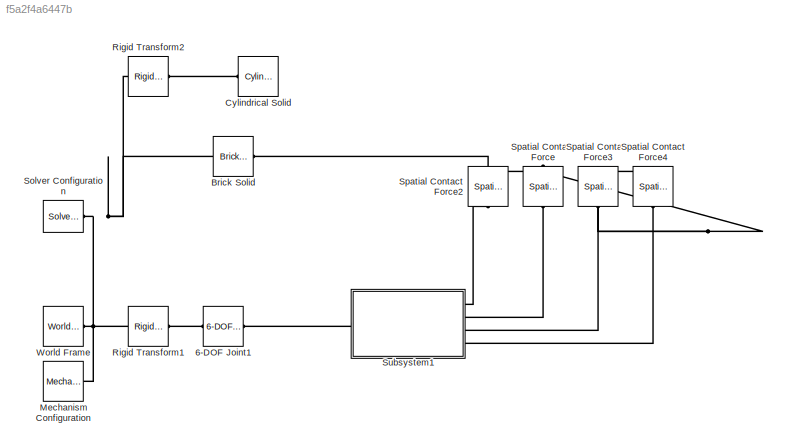
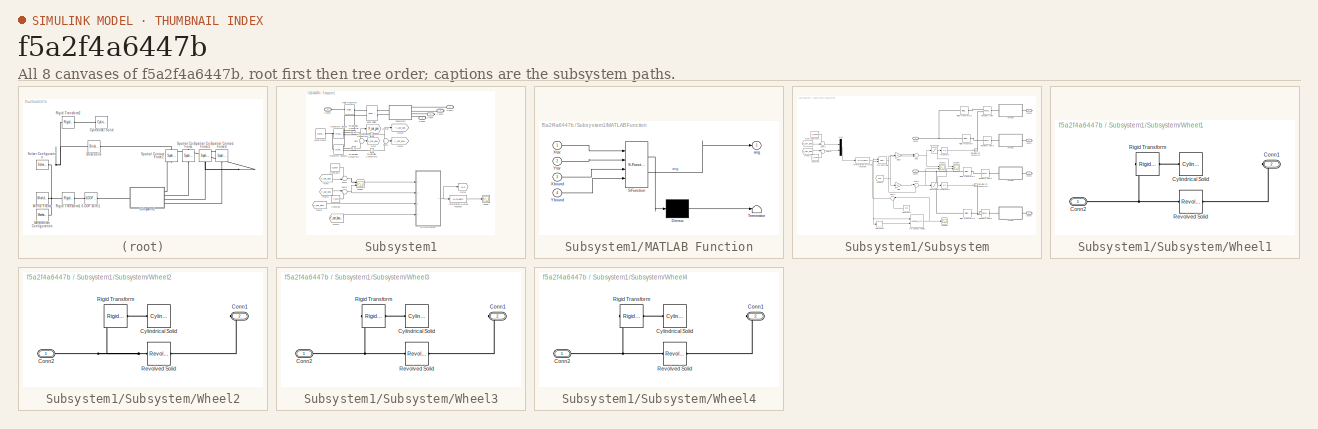
[diagram: thumbnail index - all 8 canvases of the model, root first then tree order]
MODEL slx_f5a2f4a6447b
KIND model
CONFIG AbsTol = 1e-3
CONFIG EnableMultiTasking = off
CONFIG FixedStep = 1e-3
CONFIG MaxStep = 1e-3
CONFIG MinStep = auto
CONFIG RelTol = 1e-3
CONFIG SampleTimeConstraint = Unconstrained
CONFIG SolverName = ode5
CONFIG StartTime = 0.0
CONFIG StopTime = 75
BLOCK [Reference] 6-DOF Joint1  REF=sm_lib/Joints/6-DOF Joint
  Ports = [0, 0, 0, 0, 0, 1, 1]
  SourceBlock = sm_lib/Joints/6-DOF Joint
  SourceProductBaseCode = MS
  SourceType = 6-DOF Joint
BLOCK [Reference] Brick Solid  REF=sm_lib/Body Elements/Brick Solid
  NameLocation = right
  Ports = [0, 0, 0, 0, 0, 1, 1]
  SourceBlock = sm_lib/Body Elements/Brick Solid
  SourceProductBaseCode = MS
  SourceType = Brick Solid
BLOCK [Reference] Cylindrical Solid  REF=sm_lib/Body Elements/Cylindrical Solid
  Ports = [0, 0, 0, 0, 0, 1]
  SourceBlock = sm_lib/Body Elements/Cylindrical Solid
  SourceProductBaseCode = MS
  SourceType = Cylindrical Solid
BLOCK [Reference] Mechanism Configuration  REF=sm_lib/Utilities/Mechanism
Configuration
  Ports = [0, 0, 0, 0, 0, 0, 1]
  SourceBlock = sm_lib/Utilities/Mechanism\nConfiguration
  SourceProductBaseCode = MS
  SourceType = Mechanism\nConfiguration
BLOCK [Reference] Rigid Transform1  REF=sm_lib/Frames and
Transforms/Rigid
Transform
  Ports = [0, 0, 0, 0, 0, 1, 1]
  SourceBlock = sm_lib/Frames and\nTransforms/Rigid\nTransform
  SourceProductBaseCode = MS
  SourceType = Rigid\nTransform
BLOCK [Reference] Rigid Transform2  REF=sm_lib/Frames and
Transforms/Rigid
Transform
  Ports = [0, 0, 0, 0, 0, 1, 1]
  SourceBlock = sm_lib/Frames and\nTransforms/Rigid\nTransform
  SourceProductBaseCode = MS
  SourceType = Rigid\nTransform
BLOCK [Reference] Solver Configuration  REF=nesl_utility/Solver
Configuration
  Ports = [0, 0, 0, 0, 0, 0, 1]
  SourceBlock = nesl_utility/Solver\nConfiguration
  SourceProductBaseCode = PW,SS
  SourceType = Solver\nConfiguration
BLOCK [Reference] Spatial Contact Force  REF=sm_lib/Forces and
Torques/Spatial
Contact Force
  NameLocation = left
  Ports = [0, 0, 0, 0, 0, 1, 1]
  SourceBlock = sm_lib/Forces and\nTorques/Spatial\nContact Force
  SourceProductBaseCode = MS
  SourceType = Spatial\nContact Force
BLOCK [Reference] Spatial Contact Force2  REF=sm_lib/Forces and
Torques/Spatial
Contact Force
  NameLocation = left
  Ports = [0, 0, 0, 0, 0, 1, 1]
  SourceBlock = sm_lib/Forces and\nTorques/Spatial\nContact Force
  SourceProductBaseCode = MS
  SourceType = Spatial\nContact Force
BLOCK [Reference] Spatial Contact Force3  REF=sm_lib/Forces and
Torques/Spatial
Contact Force
  NameLocation = left
  Ports = [0, 0, 0, 0, 0, 1, 1]
  SourceBlock = sm_lib/Forces and\nTorques/Spatial\nContact Force
  SourceProductBaseCode = MS
  SourceType = Spatial\nContact Force
BLOCK [Reference] Spatial Contact Force4  REF=sm_lib/Forces and
Torques/Spatial
Contact Force
  NameLocation = left
  Ports = [0, 0, 0, 0, 0, 1, 1]
  SourceBlock = sm_lib/Forces and\nTorques/Spatial\nContact Force
  SourceProductBaseCode = MS
  SourceType = Spatial\nContact Force
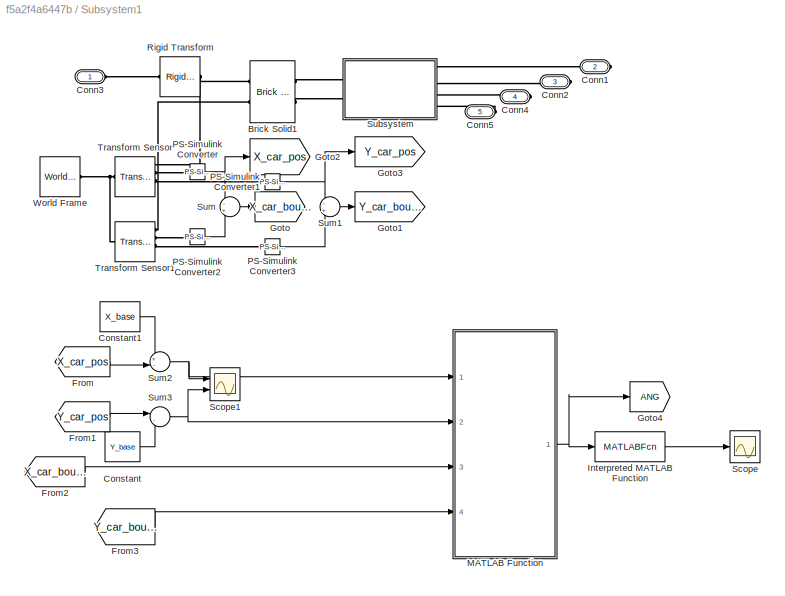
BLOCK [SubSystem] Subsystem1
  Ports = [0, 0, 0, 0, 0, 1, 4]
  RequestExecContextInheritance = off
BLOCK [Reference] Subsystem1/Brick Solid1  REF=sm_lib/Body Elements/Brick Solid
  NameLocation = top
  Ports = [0, 0, 0, 0, 0, 2, 2]
  SourceBlock = sm_lib/Body Elements/Brick Solid
  SourceProductBaseCode = MS
  SourceType = Brick Solid
BLOCK [PMIOPort] Subsystem1/Conn1
  Port = 2
  Side = Right
BLOCK [PMIOPort] Subsystem1/Conn2
  Port = 3
  Side = Right
BLOCK [PMIOPort] Subsystem1/Conn3
  Side = Left
BLOCK [PMIOPort] Subsystem1/Conn4
  Port = 4
  Side = Right
BLOCK [PMIOPort] Subsystem1/Conn5
  Port = 5
  Side = Right
BLOCK [Constant] Subsystem1/Constant
  Value = Y_base
BLOCK [Constant] Subsystem1/Constant1
  Value = X_base
BLOCK [From] Subsystem1/From
  GotoTag = X_car_pos
  TagVisibility = global
BLOCK [From] Subsystem1/From1
  GotoTag = Y_car_pos
  TagVisibility = global
BLOCK [From] Subsystem1/From2
  GotoTag = X_car_bound
  TagVisibility = global
BLOCK [From] Subsystem1/From3
  GotoTag = Y_car_bound
  TagVisibility = global
BLOCK [Goto] Subsystem1/Goto
  GotoTag = X_car_bound
  TagVisibility = global
BLOCK [Goto] Subsystem1/Goto1
  GotoTag = Y_car_bound
  TagVisibility = global
BLOCK [Goto] Subsystem1/Goto2
  GotoTag = X_car_pos
  TagVisibility = global
BLOCK [Goto] Subsystem1/Goto3
  GotoTag = Y_car_pos
  TagVisibility = global
BLOCK [Goto] Subsystem1/Goto4
  GotoTag = ANG
  TagVisibility = global
BLOCK [MATLABFcn] Subsystem1/Interpreted MATLAB Function
  MATLABFcn = rad2deg
  Ports = [1, 1]
BLOCK [SubSystem] Subsystem1/MATLAB Function
  ErrorFcn = Stateflow.Translate.translate
  PermitHierarchicalResolution = ExplicitOnly
  Ports = [4, 1]
  RequestExecContextInheritance = off
  SFBlockType = MATLAB Function
  TreatAsAtomicUnit = on
BLOCK [Demux] Subsystem1/MATLAB Function/ Demux 
  Outputs = 1
  Ports = [1, 1]
BLOCK [S-Function] Subsystem1/MATLAB Function/ SFunction 
  EnableBusSupport = on
  FunctionName = sf_sfun
  PortCounts = [4 2]
  Ports = [4, 2]
  SFcnIsStateOwnerBlock = off
  SFunctionDeploymentMode = off
  Tag = Stateflow S-Function 2
BLOCK [Terminator] Subsystem1/MATLAB Function/ Terminator 
BLOCK [Inport] Subsystem1/MATLAB Function/Xbound
  Port = 3
BLOCK [Inport] Subsystem1/MATLAB Function/Xtar
BLOCK [Inport] Subsystem1/MATLAB Function/Ybound
  Port = 4
BLOCK [Inport] Subsystem1/MATLAB Function/Ytar
  Port = 2
BLOCK [Outport] Subsystem1/MATLAB Function/ang
BLOCK [Reference] Subsystem1/PS-Simulink Converter  REF=nesl_utility/PS-Simulink
Converter
  Ports = [0, 1, 0, 0, 0, 1]
  SourceBlock = nesl_utility/PS-Simulink\nConverter
  SourceProductBaseCode = PW,SS
  SourceType = PS-Simulink\nConverter
BLOCK [Reference] Subsystem1/PS-Simulink Converter1  REF=nesl_utility/PS-Simulink
Converter
  Ports = [0, 1, 0, 0, 0, 1]
  SourceBlock = nesl_utility/PS-Simulink\nConverter
  SourceProductBaseCode = PW,SS
  SourceType = PS-Simulink\nConverter
BLOCK [Reference] Subsystem1/PS-Simulink Converter2  REF=nesl_utility/PS-Simulink
Converter
  Ports = [0, 1, 0, 0, 0, 1]
  SourceBlock = nesl_utility/PS-Simulink\nConverter
  SourceProductBaseCode = PW,SS
  SourceType = PS-Simulink\nConverter
BLOCK [Reference] Subsystem1/PS-Simulink Converter3  REF=nesl_utility/PS-Simulink
Converter
  Ports = [0, 1, 0, 0, 0, 1]
  SourceBlock = nesl_utility/PS-Simulink\nConverter
  SourceProductBaseCode = PW,SS
  SourceType = PS-Simulink\nConverter
BLOCK [Reference] Subsystem1/Rigid Transform  REF=sm_lib/Frames and
Transforms/Rigid
Transform
  Ports = [0, 0, 0, 0, 0, 1, 1]
  SourceBlock = sm_lib/Frames and\nTransforms/Rigid\nTransform
  SourceProductBaseCode = MS
  SourceType = Rigid\nTransform
BLOCK [Scope] Subsystem1/Scope
  Floating = off
  NumInputPorts = 1
  Ports = [1]
  ScopeSpecificationString = Simulink.scopes.TimeScopeBlockCfg('CurrentConfiguration', extmgr.ConfigurationSet(extmgr.Configuration('Core','General UI',true),extmgr.Configuration('Core','Source UI',true),extmgr.Configuration('Sources','WiredSimulink',true),extmgr.Configuration('Visuals','Time Domain',true,'SerializedDisplays',{struct('MinYLimReal','-224.72252','MaxYLimReal','223.83335','YLabelReal','','MinYLimMag',' 0.00000',...<+1434ch>
BLOCK [Scope] Subsystem1/Scope1
  Floating = off
  NumInputPorts = 2
  Ports = [2]
  ScopeSpecificationString = Simulink.scopes.TimeScopeBlockCfg('CurrentConfiguration', extmgr.ConfigurationSet(extmgr.Configuration('Core','General UI',true),extmgr.Configuration('Core','Source UI',true),extmgr.Configuration('Sources','WiredSimulink',true,'DataLoggingVariableName','ScopeData1'),extmgr.Configuration('Visuals','Time Domain',true,'SerializedDisplays',{struct('MinYLimReal','-10.04181','MaxYLimReal','170.3756','YL...<+1445ch>
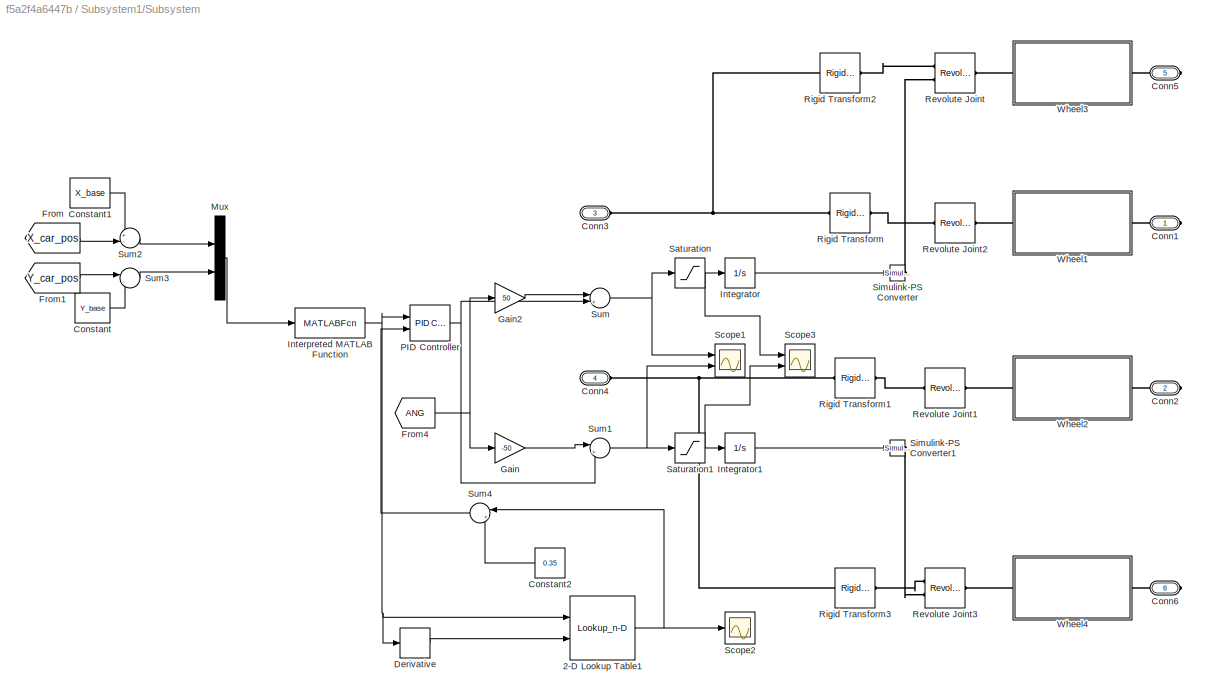
BLOCK [SubSystem] Subsystem1/Subsystem
  Ports = [0, 0, 0, 0, 0, 2, 4]
  RequestExecContextInheritance = off
BLOCK [Lookup_n-D] Subsystem1/Subsystem/2-D Lookup Table1
  BreakpointsForDimension1 = X(1,:)
  BreakpointsForDimension2 = Y(:,1)
  InputPortMap = u0,u1
  InternalRulePriority = Speed
  Ports = [2, 1]
  RndMeth = Simplest
  Table = Z(:,:,1)
BLOCK [PMIOPort] Subsystem1/Subsystem/Conn1
  Side = Right
BLOCK [PMIOPort] Subsystem1/Subsystem/Conn2
  Port = 2
  Side = Right
BLOCK [PMIOPort] Subsystem1/Subsystem/Conn3
  Port = 3
  Side = Left
BLOCK [PMIOPort] Subsystem1/Subsystem/Conn4
  Port = 4
  Side = Left
BLOCK [PMIOPort] Subsystem1/Subsystem/Conn5
  Port = 5
  Side = Right
BLOCK [PMIOPort] Subsystem1/Subsystem/Conn6
  Port = 6
  Side = Right
BLOCK [Constant] Subsystem1/Subsystem/Constant
  Value = Y_base
BLOCK [Constant] Subsystem1/Subsystem/Constant1
  Value = X_base
BLOCK [Constant] Subsystem1/Subsystem/Constant2
  NameLocation = top
  Value = 0.35
BLOCK [Derivative] Subsystem1/Subsystem/Derivative
BLOCK [From] Subsystem1/Subsystem/From
  GotoTag = X_car_pos
  TagVisibility = global
BLOCK [From] Subsystem1/Subsystem/From1
  GotoTag = Y_car_pos
  TagVisibility = global
BLOCK [From] Subsystem1/Subsystem/From4
  GotoTag = ANG
  TagVisibility = global
BLOCK [Gain] Subsystem1/Subsystem/Gain
  Gain = -50
BLOCK [Gain] Subsystem1/Subsystem/Gain2
  Gain = 50
BLOCK [Integrator] Subsystem1/Subsystem/Integrator
  LowerSaturationLimit = 0
  Ports = [1, 1]
  UpperSaturationLimit = 50
BLOCK [Integrator] Subsystem1/Subsystem/Integrator1
  LowerSaturationLimit = 0
  Ports = [1, 1]
  UpperSaturationLimit = 50
BLOCK [MATLABFcn] Subsystem1/Subsystem/Interpreted MATLAB Function
  MATLABFcn = norm
  Ports = [1, 1]
BLOCK [Mux] Subsystem1/Subsystem/Mux
  DisplayOption = bar
  Inputs = 2
  Ports = [2, 1]
BLOCK [Reference] Subsystem1/Subsystem/PID Controller  REF=pid_lib/PID Controller
  Ports = [2, 1]
  SourceBlock = pid_lib/PID Controller
  SourceProductBaseCode = SL
  SourceType = PID 1dof
BLOCK [Reference] Subsystem1/Subsystem/Revolute Joint  REF=sm_lib/Joints/Revolute Joint
  Ports = [0, 0, 0, 0, 0, 2, 1]
  SourceBlock = sm_lib/Joints/Revolute Joint
  SourceProductBaseCode = MS
  SourceType = Revolute Joint
BLOCK [Reference] Subsystem1/Subsystem/Revolute Joint1  REF=sm_lib/Joints/Revolute Joint
  Ports = [0, 0, 0, 0, 0, 1, 1]
  SourceBlock = sm_lib/Joints/Revolute Joint
  SourceProductBaseCode = MS
  SourceType = Revolute Joint
BLOCK [Reference] Subsystem1/Subsystem/Revolute Joint2  REF=sm_lib/Joints/Revolute Joint
  Ports = [0, 0, 0, 0, 0, 1, 1]
  SourceBlock = sm_lib/Joints/Revolute Joint
  SourceProductBaseCode = MS
  SourceType = Revolute Joint
BLOCK [Reference] Subsystem1/Subsystem/Revolute Joint3  REF=sm_lib/Joints/Revolute Joint
  Ports = [0, 0, 0, 0, 0, 2, 1]
  SourceBlock = sm_lib/Joints/Revolute Joint
  SourceProductBaseCode = MS
  SourceType = Revolute Joint
BLOCK [Reference] Subsystem1/Subsystem/Rigid Transform  REF=sm_lib/Frames and
Transforms/Rigid
Transform
  Ports = [0, 0, 0, 0, 0, 1, 1]
  SourceBlock = sm_lib/Frames and\nTransforms/Rigid\nTransform
  SourceProductBaseCode = MS
  SourceType = Rigid\nTransform
BLOCK [Reference] Subsystem1/Subsystem/Rigid Transform1  REF=sm_lib/Frames and
Transforms/Rigid
Transform
  Ports = [0, 0, 0, 0, 0, 1, 1]
  SourceBlock = sm_lib/Frames and\nTransforms/Rigid\nTransform
  SourceProductBaseCode = MS
  SourceType = Rigid\nTransform
BLOCK [Reference] Subsystem1/Subsystem/Rigid Transform2  REF=sm_lib/Frames and
Transforms/Rigid
Transform
  Ports = [0, 0, 0, 0, 0, 1, 1]
  SourceBlock = sm_lib/Frames and\nTransforms/Rigid\nTransform
  SourceProductBaseCode = MS
  SourceType = Rigid\nTransform
BLOCK [Reference] Subsystem1/Subsystem/Rigid Transform3  REF=sm_lib/Frames and
Transforms/Rigid
Transform
  Ports = [0, 0, 0, 0, 0, 1, 1]
  SourceBlock = sm_lib/Frames and\nTransforms/Rigid\nTransform
  SourceProductBaseCode = MS
  SourceType = Rigid\nTransform
BLOCK [Saturate] Subsystem1/Subsystem/Saturation
  LowerLimit = 0
  UpperLimit = 50
BLOCK [Saturate] Subsystem1/Subsystem/Saturation1
  LowerLimit = 0
  UpperLimit = 50
BLOCK [Scope] Subsystem1/Subsystem/Scope1
  Floating = off
  NumInputPorts = 2
  Ports = [2]
  ScopeSpecificationString = Simulink.scopes.TimeScopeBlockCfg('CurrentConfiguration', extmgr.ConfigurationSet(extmgr.Configuration('Core','General UI',true,'FigureColor',[1 1 1]),extmgr.Configuration('Core','Source UI',true),extmgr.Configuration('Sources','WiredSimulink',true,'DataLoggingVariableName','ScopeData3'),extmgr.Configuration('Visuals','Time Domain',true,'SerializedDisplays',{struct('MinYLimReal','-196.33763','MaxY...<+1679ch>
BLOCK [Scope] Subsystem1/Subsystem/Scope2
  Floating = off
  NumInputPorts = 1
  Ports = [1]
  ScopeSpecificationString = Simulink.scopes.TimeScopeBlockCfg('CurrentConfiguration', extmgr.ConfigurationSet(extmgr.Configuration('Core','General UI',true,'FigureColor',[1 1 1]),extmgr.Configuration('Core','Source UI',true),extmgr.Configuration('Sources','WiredSimulink',true,'DataLoggingVariableName','ScopeData4','DataLoggingSaveFormat','Array','DataLoggingLimitDataPoints',true,'DataLoggingDecimation','1'),extmgr.Configurat...<+1783ch>
BLOCK [Scope] Subsystem1/Subsystem/Scope3
  Floating = off
  NumInputPorts = 2
  Ports = [2]
  ScopeSpecificationString = Simulink.scopes.TimeScopeBlockCfg('CurrentConfiguration', extmgr.ConfigurationSet(extmgr.Configuration('Core','General UI',true,'FigureColor',[1 1 1]),extmgr.Configuration('Core','Source UI',true),extmgr.Configuration('Sources','WiredSimulink',true,'DataLoggingVariableName','ScopeData1'),extmgr.Configuration('Visuals','Time Domain',true,'SerializedDisplays',{struct('MinYLimReal','-6.25','MaxYLimRe...<+1690ch>
BLOCK [Reference] Subsystem1/Subsystem/Simulink-PS Converter  REF=nesl_utility/Simulink-PS
Converter
  Ports = [1, 0, 0, 0, 0, 0, 1]
  SourceBlock = nesl_utility/Simulink-PS\nConverter
  SourceProductBaseCode = PW,SS
  SourceType = Simulink-PS\nConverter
BLOCK [Reference] Subsystem1/Subsystem/Simulink-PS Converter1  REF=nesl_utility/Simulink-PS
Converter
  Ports = [1, 0, 0, 0, 0, 0, 1]
  SourceBlock = nesl_utility/Simulink-PS\nConverter
  SourceProductBaseCode = PW,SS
  SourceType = Simulink-PS\nConverter
BLOCK [Sum] Subsystem1/Subsystem/Sum
  Inputs = |++
  Ports = [2, 1]
BLOCK [Sum] Subsystem1/Subsystem/Sum1
  Inputs = |++
  Ports = [2, 1]
BLOCK [Sum] Subsystem1/Subsystem/Sum2
  Inputs = +-|
  Ports = [2, 1]
BLOCK [Sum] Subsystem1/Subsystem/Sum3
  Inputs = |-+
  Ports = [2, 1]
BLOCK [Sum] Subsystem1/Subsystem/Sum4
  Inputs = |++
  NameLocation = top
  Ports = [2, 1]
BLOCK [SubSystem] Subsystem1/Subsystem/Wheel1
  Ports = [0, 0, 0, 0, 0, 1, 1]
  RequestExecContextInheritance = off
BLOCK [PMIOPort] Subsystem1/Subsystem/Wheel1/Conn1
  Port = 2
  Side = Right
BLOCK [PMIOPort] Subsystem1/Subsystem/Wheel1/Conn2
  Side = Left
BLOCK [Reference] Subsystem1/Subsystem/Wheel1/Cylindrical Solid  REF=sm_lib/Body Elements/Cylindrical Solid
  NameLocation = top
  Ports = [0, 0, 0, 0, 0, 0, 1]
  SourceBlock = sm_lib/Body Elements/Cylindrical Solid
  SourceProductBaseCode = MS
  SourceType = Cylindrical Solid
BLOCK [Reference] Subsystem1/Subsystem/Wheel1/Revolved Solid  REF=sm_lib/Body Elements/Revolved Solid
  NameLocation = top
  Ports = [0, 0, 0, 0, 0, 1, 1]
  SourceBlock = sm_lib/Body Elements/Revolved Solid
  SourceProductBaseCode = MS
  SourceType = Revolved Solid
BLOCK [Reference] Subsystem1/Subsystem/Wheel1/Rigid Transform  REF=sm_lib/Frames and
Transforms/Rigid
Transform
  Ports = [0, 0, 0, 0, 0, 1, 1]
  SourceBlock = sm_lib/Frames and\nTransforms/Rigid\nTransform
  SourceProductBaseCode = MS
  SourceType = Rigid\nTransform
BLOCK [SubSystem] Subsystem1/Subsystem/Wheel2
  Ports = [0, 0, 0, 0, 0, 1, 1]
  RequestExecContextInheritance = off
BLOCK [PMIOPort] Subsystem1/Subsystem/Wheel2/Conn1
  Port = 2
  Side = Right
BLOCK [PMIOPort] Subsystem1/Subsystem/Wheel2/Conn2
  Side = Left
BLOCK [Reference] Subsystem1/Subsystem/Wheel2/Cylindrical Solid  REF=sm_lib/Body Elements/Cylindrical Solid
  NameLocation = top
  Ports = [0, 0, 0, 0, 0, 0, 1]
  SourceBlock = sm_lib/Body Elements/Cylindrical Solid
  SourceProductBaseCode = MS
  SourceType = Cylindrical Solid
BLOCK [Reference] Subsystem1/Subsystem/Wheel2/Revolved Solid  REF=sm_lib/Body Elements/Revolved Solid
  NameLocation = top
  Ports = [0, 0, 0, 0, 0, 1, 1]
  SourceBlock = sm_lib/Body Elements/Revolved Solid
  SourceProductBaseCode = MS
  SourceType = Revolved Solid
BLOCK [Reference] Subsystem1/Subsystem/Wheel2/Rigid Transform  REF=sm_lib/Frames and
Transforms/Rigid
Transform
  Ports = [0, 0, 0, 0, 0, 1, 1]
  SourceBlock = sm_lib/Frames and\nTransforms/Rigid\nTransform
  SourceProductBaseCode = MS
  SourceType = Rigid\nTransform
BLOCK [SubSystem] Subsystem1/Subsystem/Wheel3
  Ports = [0, 0, 0, 0, 0, 1, 1]
  RequestExecContextInheritance = off
BLOCK [PMIOPort] Subsystem1/Subsystem/Wheel3/Conn1
  Port = 2
  Side = Right
BLOCK [PMIOPort] Subsystem1/Subsystem/Wheel3/Conn2
  Side = Left
BLOCK [Reference] Subsystem1/Subsystem/Wheel3/Cylindrical Solid  REF=sm_lib/Body Elements/Cylindrical Solid
  NameLocation = top
  Ports = [0, 0, 0, 0, 0, 0, 1]
  SourceBlock = sm_lib/Body Elements/Cylindrical Solid
  SourceProductBaseCode = MS
  SourceType = Cylindrical Solid
BLOCK [Reference] Subsystem1/Subsystem/Wheel3/Revolved Solid  REF=sm_lib/Body Elements/Revolved Solid
  NameLocation = top
  Ports = [0, 0, 0, 0, 0, 1, 1]
  SourceBlock = sm_lib/Body Elements/Revolved Solid
  SourceProductBaseCode = MS
  SourceType = Revolved Solid
BLOCK [Reference] Subsystem1/Subsystem/Wheel3/Rigid Transform  REF=sm_lib/Frames and
Transforms/Rigid
Transform
  Ports = [0, 0, 0, 0, 0, 1, 1]
  SourceBlock = sm_lib/Frames and\nTransforms/Rigid\nTransform
  SourceProductBaseCode = MS
  SourceType = Rigid\nTransform
BLOCK [SubSystem] Subsystem1/Subsystem/Wheel4
  Ports = [0, 0, 0, 0, 0, 1, 1]
  RequestExecContextInheritance = off
BLOCK [PMIOPort] Subsystem1/Subsystem/Wheel4/Conn1
  Port = 2
  Side = Right
BLOCK [PMIOPort] Subsystem1/Subsystem/Wheel4/Conn2
  Side = Left
BLOCK [Reference] Subsystem1/Subsystem/Wheel4/Cylindrical Solid  REF=sm_lib/Body Elements/Cylindrical Solid
  NameLocation = top
  Ports = [0, 0, 0, 0, 0, 0, 1]
  SourceBlock = sm_lib/Body Elements/Cylindrical Solid
  SourceProductBaseCode = MS
  SourceType = Cylindrical Solid
BLOCK [Reference] Subsystem1/Subsystem/Wheel4/Revolved Solid  REF=sm_lib/Body Elements/Revolved Solid
  NameLocation = top
  Ports = [0, 0, 0, 0, 0, 1, 1]
  SourceBlock = sm_lib/Body Elements/Revolved Solid
  SourceProductBaseCode = MS
  SourceType = Revolved Solid
BLOCK [Reference] Subsystem1/Subsystem/Wheel4/Rigid Transform  REF=sm_lib/Frames and
Transforms/Rigid
Transform
  Ports = [0, 0, 0, 0, 0, 1, 1]
  SourceBlock = sm_lib/Frames and\nTransforms/Rigid\nTransform
  SourceProductBaseCode = MS
  SourceType = Rigid\nTransform
BLOCK [Sum] Subsystem1/Sum
  Inputs = -+
  Ports = [2, 1]
BLOCK [Sum] Subsystem1/Sum1
  Inputs = -+
  Ports = [2, 1]
BLOCK [Sum] Subsystem1/Sum2
  Inputs = +-|
  Ports = [2, 1]
BLOCK [Sum] Subsystem1/Sum3
  Inputs = |-+
  Ports = [2, 1]
BLOCK [Reference] Subsystem1/Transform Sensor  REF=sm_lib/Frames and
Transforms/Transform
Sensor
  Ports = [0, 0, 0, 0, 0, 1, 4]
  SourceBlock = sm_lib/Frames and\nTransforms/Transform\nSensor
  SourceProductBaseCode = MS
  SourceType = Transform\nSensor
BLOCK [Reference] Subsystem1/Transform Sensor1  REF=sm_lib/Frames and
Transforms/Transform
Sensor
  Ports = [0, 0, 0, 0, 0, 1, 4]
  SourceBlock = sm_lib/Frames and\nTransforms/Transform\nSensor
  SourceProductBaseCode = MS
  SourceType = Transform\nSensor
BLOCK [Reference] Subsystem1/World Frame  REF=sm_lib/Frames and
Transforms/World Frame
  Ports = [0, 0, 0, 0, 0, 0, 1]
  SourceBlock = sm_lib/Frames and\nTransforms/World Frame
  SourceProductBaseCode = MS
  SourceType = World Frame
BLOCK [Reference] World Frame  REF=sm_lib/Frames and
Transforms/World Frame
  Ports = [0, 0, 0, 0, 0, 0, 1]
  SourceBlock = sm_lib/Frames and\nTransforms/World Frame
  SourceProductBaseCode = MS
  SourceType = World Frame
LINE Subsystem1/Constant1:1 -> Subsystem1/Sum2:1
LINE Subsystem1/Constant:1 -> Subsystem1/Sum3:2
LINE Subsystem1/From1:1 -> Subsystem1/Sum3:1
LINE Subsystem1/From2:1 -> Subsystem1/MATLAB Function:3
LINE Subsystem1/From3:1 -> Subsystem1/MATLAB Function:4
LINE Subsystem1/From:1 -> Subsystem1/Sum2:2
LINE Subsystem1/Interpreted MATLAB Function:1 -> Subsystem1/Scope:1
NET Subsystem1/MATLAB Function:1 -> Subsystem1/Goto4:1, Subsystem1/Interpreted MATLAB Function:1
NET Subsystem1/PS-Simulink Converter1:1 -> Subsystem1/Goto3:1, Subsystem1/Sum1:1
LINE Subsystem1/PS-Simulink Converter2:1 -> Subsystem1/Sum:2
LINE Subsystem1/PS-Simulink Converter3:1 -> Subsystem1/Sum1:2
NET Subsystem1/PS-Simulink Converter:1 -> Subsystem1/Goto2:1, Subsystem1/Sum:1
NET Subsystem1/Subsystem/2-D Lookup Table1:1 -> Subsystem1/Subsystem/Scope2:1, Subsystem1/Subsystem/Sum4:1
LINE Subsystem1/Subsystem/Constant1:1 -> Subsystem1/Subsystem/Sum2:1
LINE Subsystem1/Subsystem/Constant2:1 -> Subsystem1/Subsystem/Sum4:2
LINE Subsystem1/Subsystem/Constant:1 -> Subsystem1/Subsystem/Sum3:2
LINE Subsystem1/Subsystem/Derivative:1 -> Subsystem1/Subsystem/2-D Lookup Table1:2
LINE Subsystem1/Subsystem/From1:1 -> Subsystem1/Subsystem/Sum3:1
NET Subsystem1/Subsystem/From4:1 -> Subsystem1/Subsystem/Gain2:1, Subsystem1/Subsystem/Gain:1
LINE Subsystem1/Subsystem/From:1 -> Subsystem1/Subsystem/Sum2:2
LINE Subsystem1/Subsystem/Gain2:1 -> Subsystem1/Subsystem/Sum:1
LINE Subsystem1/Subsystem/Gain:1 -> Subsystem1/Subsystem/Sum1:1
LINE Subsystem1/Subsystem/Integrator1:1 -> Subsystem1/Subsystem/Simulink-PS Converter1:1
LINE Subsystem1/Subsystem/Integrator:1 -> Subsystem1/Subsystem/Simulink-PS Converter:1
NET Subsystem1/Subsystem/Interpreted MATLAB Function:1 -> Subsystem1/Subsystem/2-D Lookup Table1:1, Subsystem1/Subsystem/Derivative:1, Subsystem1/Subsystem/PID Controller:1
LINE Subsystem1/Subsystem/Mux:1 -> Subsystem1/Subsystem/Interpreted MATLAB Function:1
NET Subsystem1/Subsystem/PID Controller:1 -> Subsystem1/Subsystem/Sum1:2, Subsystem1/Subsystem/Sum:2
NET Subsystem1/Subsystem/Saturation1:1 -> Subsystem1/Subsystem/Integrator1:1, Subsystem1/Subsystem/Scope3:2
NET Subsystem1/Subsystem/Saturation:1 -> Subsystem1/Subsystem/Integrator:1, Subsystem1/Subsystem/Scope3:1
NET Subsystem1/Subsystem/Sum1:1 -> Subsystem1/Subsystem/Saturation1:1, Subsystem1/Subsystem/Scope1:2
LINE Subsystem1/Subsystem/Sum2:1 -> Subsystem1/Subsystem/Mux:1
LINE Subsystem1/Subsystem/Sum3:1 -> Subsystem1/Subsystem/Mux:2
LINE Subsystem1/Subsystem/Sum4:1 -> Subsystem1/Subsystem/PID Controller:2
NET Subsystem1/Subsystem/Sum:1 -> Subsystem1/Subsystem/Saturation:1, Subsystem1/Subsystem/Scope1:1
LINE Subsystem1/Sum1:1 -> Subsystem1/Goto1:1
NET Subsystem1/Sum2:1 -> Subsystem1/MATLAB Function:1, Subsystem1/Scope1:1
NET Subsystem1/Sum3:1 -> Subsystem1/MATLAB Function:2, Subsystem1/Scope1:2
LINE Subsystem1/Sum:1 -> Subsystem1/Goto:1
PLINE 6-DOF Joint1:LConn1 -- Rigid Transform1:RConn1
PLINE 6-DOF Joint1:RConn1 -- Subsystem1:LConn1
PNET net1: Brick Solid:LConn1 -- Spatial Contact Force2:LConn1 -- Spatial Contact Force3:LConn1 -- Spatial Contact Force4:LConn1 -- Spatial Contact Force:LConn1
PNET net2: Brick Solid:RConn1 -- Mechanism Configuration:RConn1 -- Rigid Transform1:LConn1 -- Rigid Transform2:LConn1 -- Solver Configuration:RConn1 -- World Frame:RConn1
PLINE Cylindrical Solid:LConn1 -- Rigid Transform2:RConn1
PLINE Spatial Contact Force2:RConn1 -- Subsystem1:RConn1
PLINE Spatial Contact Force3:RConn1 -- Subsystem1:RConn3
PLINE Spatial Contact Force4:RConn1 -- Subsystem1:RConn4
PLINE Spatial Contact Force:RConn1 -- Subsystem1:RConn2
PLINE Subsystem1/Brick Solid1:LConn1 -- Subsystem1/Subsystem:LConn1
PLINE Subsystem1/Brick Solid1:LConn2 -- Subsystem1/Subsystem:LConn2
PNET net3: Subsystem1/Brick Solid1:RConn1 -- Subsystem1/Rigid Transform:RConn1 -- Subsystem1/Transform Sensor:RConn1
PLINE Subsystem1/Brick Solid1:RConn2 -- Subsystem1/Transform Sensor1:RConn1
PLINE Subsystem1/Conn1:RConn1 -- Subsystem1/Subsystem:RConn1
PLINE Subsystem1/Conn2:RConn1 -- Subsystem1/Subsystem:RConn2
PLINE Subsystem1/Conn3:RConn1 -- Subsystem1/Rigid Transform:LConn1
PLINE Subsystem1/Conn4:RConn1 -- Subsystem1/Subsystem:RConn3
PLINE Subsystem1/Conn5:RConn1 -- Subsystem1/Subsystem:RConn4
PLINE Subsystem1/PS-Simulink Converter1:LConn1 -- Subsystem1/Transform Sensor:RConn3
PLINE Subsystem1/PS-Simulink Converter2:LConn1 -- Subsystem1/Transform Sensor1:RConn2
PLINE Subsystem1/PS-Simulink Converter3:LConn1 -- Subsystem1/Transform Sensor1:RConn3
PLINE Subsystem1/PS-Simulink Converter:LConn1 -- Subsystem1/Transform Sensor:RConn2
PLINE Subsystem1/Subsystem/Conn1:RConn1 -- Subsystem1/Subsystem/Wheel1:RConn1
PLINE Subsystem1/Subsystem/Conn2:RConn1 -- Subsystem1/Subsystem/Wheel2:RConn1
PNET net4: Subsystem1/Subsystem/Conn3:RConn1 -- Subsystem1/Subsystem/Rigid Transform2:LConn1 -- Subsystem1/Subsystem/Rigid Transform:LConn1
PNET net5: Subsystem1/Subsystem/Conn4:RConn1 -- Subsystem1/Subsystem/Rigid Transform1:LConn1 -- Subsystem1/Subsystem/Rigid Transform3:LConn1
PLINE Subsystem1/Subsystem/Conn5:RConn1 -- Subsystem1/Subsystem/Wheel3:RConn1
PLINE Subsystem1/Subsystem/Conn6:RConn1 -- Subsystem1/Subsystem/Wheel4:RConn1
PLINE Subsystem1/Subsystem/Revolute Joint1:LConn1 -- Subsystem1/Subsystem/Rigid Transform1:RConn1
PLINE Subsystem1/Subsystem/Revolute Joint1:RConn1 -- Subsystem1/Subsystem/Wheel2:LConn1
PLINE Subsystem1/Subsystem/Revolute Joint2:LConn1 -- Subsystem1/Subsystem/Rigid Transform:RConn1
PLINE Subsystem1/Subsystem/Revolute Joint2:RConn1 -- Subsystem1/Subsystem/Wheel1:LConn1
PLINE Subsystem1/Subsystem/Revolute Joint3:LConn1 -- Subsystem1/Subsystem/Rigid Transform3:RConn1
PLINE Subsystem1/Subsystem/Revolute Joint3:LConn2 -- Subsystem1/Subsystem/Simulink-PS Converter1:RConn1
PLINE Subsystem1/Subsystem/Revolute Joint3:RConn1 -- Subsystem1/Subsystem/Wheel4:LConn1
PLINE Subsystem1/Subsystem/Revolute Joint:LConn1 -- Subsystem1/Subsystem/Rigid Transform2:RConn1
PLINE Subsystem1/Subsystem/Revolute Joint:LConn2 -- Subsystem1/Subsystem/Simulink-PS Converter:RConn1
PLINE Subsystem1/Subsystem/Revolute Joint:RConn1 -- Subsystem1/Subsystem/Wheel3:LConn1
PLINE Subsystem1/Subsystem/Wheel1/Conn1:RConn1 -- Subsystem1/Subsystem/Wheel1/Revolved Solid:LConn1
PNET net6: Subsystem1/Subsystem/Wheel1/Conn2:RConn1 -- Subsystem1/Subsystem/Wheel1/Revolved Solid:RConn1 -- Subsystem1/Subsystem/Wheel1/Rigid Transform:LConn1
PLINE Subsystem1/Subsystem/Wheel1/Cylindrical Solid:RConn1 -- Subsystem1/Subsystem/Wheel1/Rigid Transform:RConn1
PLINE Subsystem1/Subsystem/Wheel2/Conn1:RConn1 -- Subsystem1/Subsystem/Wheel2/Revolved Solid:LConn1
PNET net7: Subsystem1/Subsystem/Wheel2/Conn2:RConn1 -- Subsystem1/Subsystem/Wheel2/Revolved Solid:RConn1 -- Subsystem1/Subsystem/Wheel2/Rigid Transform:LConn1
PLINE Subsystem1/Subsystem/Wheel2/Cylindrical Solid:RConn1 -- Subsystem1/Subsystem/Wheel2/Rigid Transform:RConn1
PLINE Subsystem1/Subsystem/Wheel3/Conn1:RConn1 -- Subsystem1/Subsystem/Wheel3/Revolved Solid:LConn1
PNET net8: Subsystem1/Subsystem/Wheel3/Conn2:RConn1 -- Subsystem1/Subsystem/Wheel3/Revolved Solid:RConn1 -- Subsystem1/Subsystem/Wheel3/Rigid Transform:LConn1
PLINE Subsystem1/Subsystem/Wheel3/Cylindrical Solid:RConn1 -- Subsystem1/Subsystem/Wheel3/Rigid Transform:RConn1
PLINE Subsystem1/Subsystem/Wheel4/Conn1:RConn1 -- Subsystem1/Subsystem/Wheel4/Revolved Solid:LConn1
PNET net9: Subsystem1/Subsystem/Wheel4/Conn2:RConn1 -- Subsystem1/Subsystem/Wheel4/Revolved Solid:RConn1 -- Subsystem1/Subsystem/Wheel4/Rigid Transform:LConn1
PLINE Subsystem1/Subsystem/Wheel4/Cylindrical Solid:RConn1 -- Subsystem1/Subsystem/Wheel4/Rigid Transform:RConn1
PNET net10: Subsystem1/Transform Sensor1:LConn1 -- Subsystem1/Transform Sensor:LConn1 -- Subsystem1/World Frame:RConn1
note: NET lines group one-source signal fan-out (src -> all destinations, sorted); 1:1 wires keep LINE; PNET lines group multi-terminal physical nets as a canonical sorted terminal list (undirected conserving connections); 2-terminal nets keep the pairwise PLINE form
CHART Subsystem1/MATLAB Function states=1 transitions=1
  STATE_LABEL 'eML_blk_kernel()'
  STATE_LABEL 'SCRIPT:\nfunction ang = fcn(Xtar,Ytar,Xbound,Ybound)\n\nang =  - atan2(Xbound,Ybound) + atan2(Xtar,Ytar);\n\nif abs(ang) > pi\n    \n    ang = ang - 2*pi*sign(ang);\n    \nend\n\nend\n'
CHART  states=0 transitions=0
